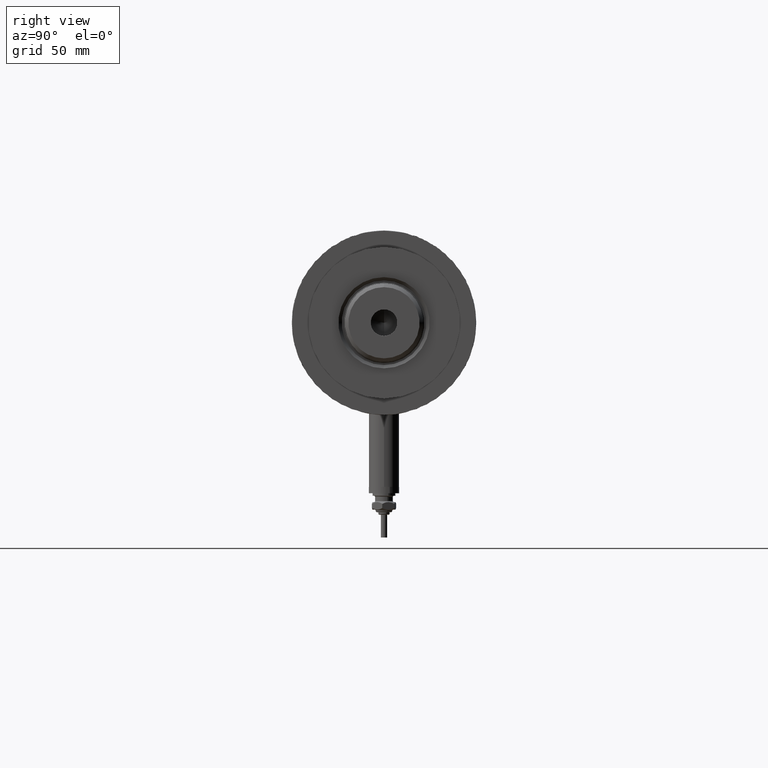
[diagram: clean part render]
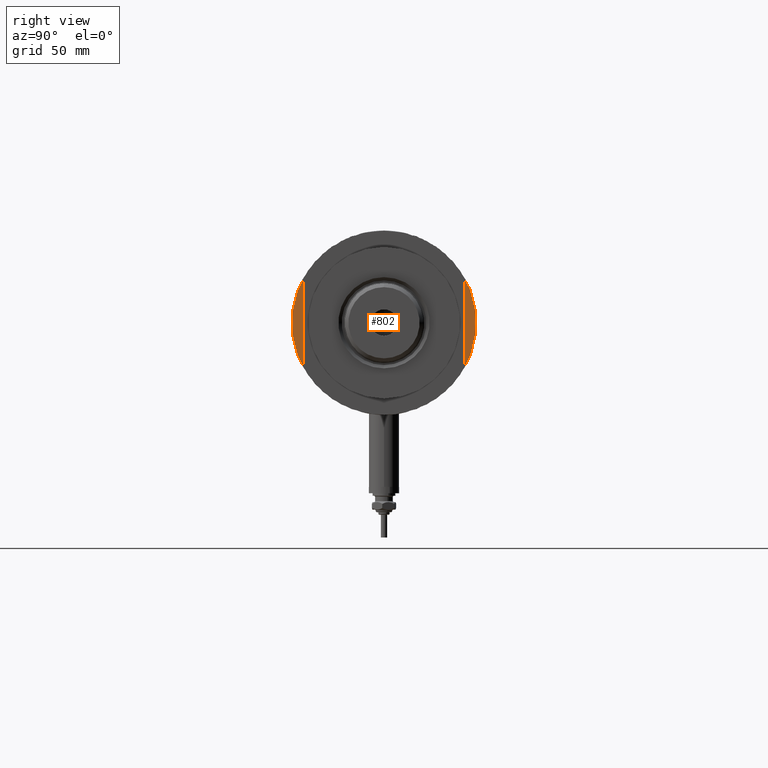
[diagram: same view with one face highlighted and labeled with its STEP entity id]
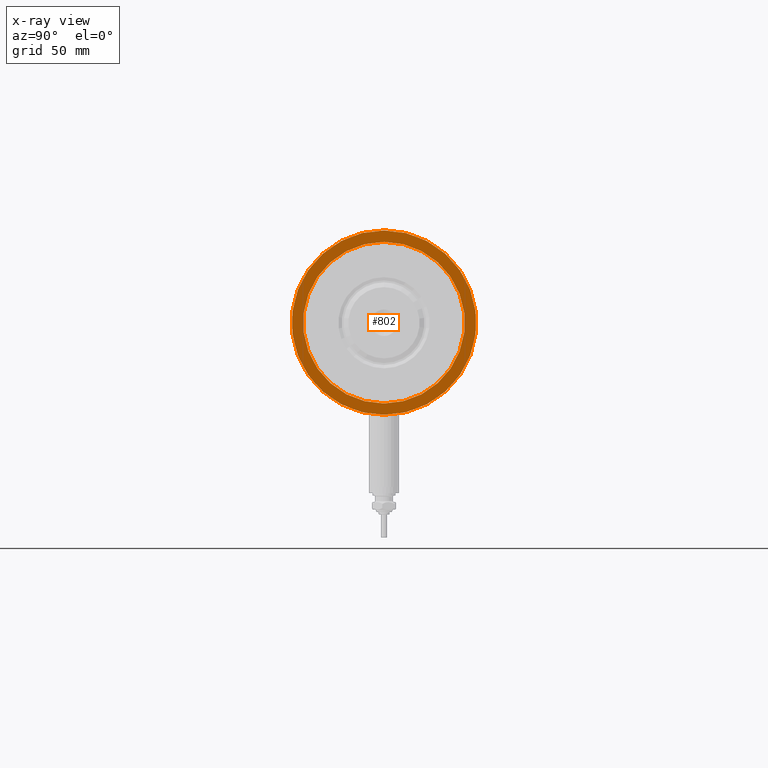
[diagram: x-ray of the same camera — body ghosted, the highlighted face saturated]
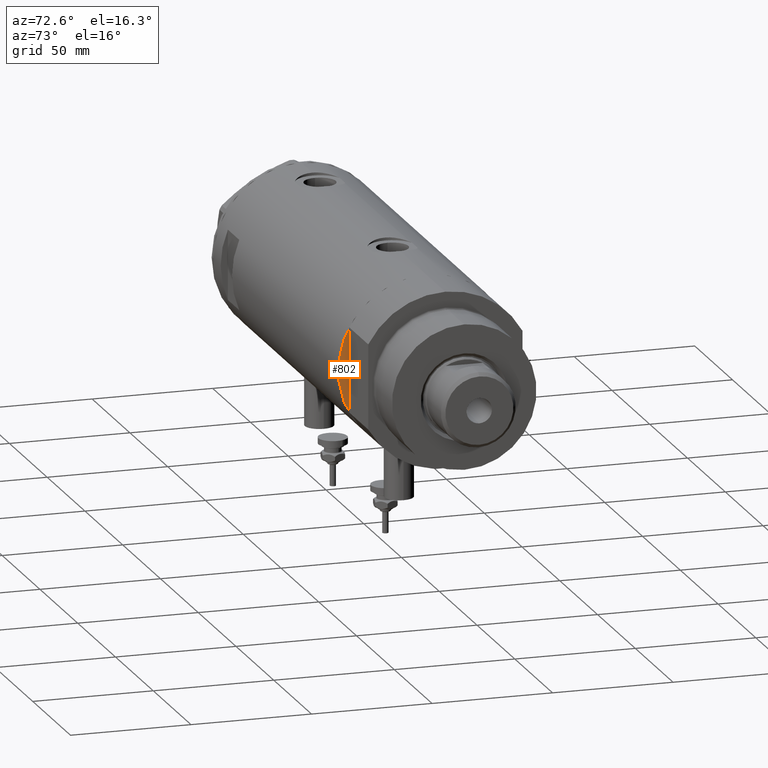
[diagram: same view with one face highlighted and labeled with its STEP entity id]
A machine part, right view. The second image highlights one B-rep face of the part: STEP entity #802.
The next image is the same camera in x-ray: the body ghosted, the highlighted face saturated — about 0% of this face is hidden behind the body in this view.
A second angle (auxiliary view) of the same face is appended — the face is thin or edge-on in the first view.
In plain terms, the highlighted planar face has unit normal (-1, -0, 0).
Its self-contained STEP definition (entity closure, byte-faithful):
#51 = DIRECTION ( 'NONE',  ( -1.000000000000000000, 0.000000000000000000, 0.000000000000000000 ) ) ;
#79 = ORIENTED_EDGE ( 'NONE', *, *, #2901, .F. ) ;
#159 = CIRCLE ( 'NONE', #1221, 32.00000000000000000 ) ;
#736 = CARTESIAN_POINT ( 'NONE',  ( 0.000000000000000000, 0.000000000000000000, -82.90000000000000568 ) ) ;
#762 = VERTEX_POINT ( 'NONE', #2600 ) ;
#802 = ADVANCED_FACE ( 'NONE', ( #3574, #4939 ), #4352, .F. ) ;
#811 = EDGE_CURVE ( 'NONE', #762, #2198, #5151, .T. ) ;
#937 = DIRECTION ( 'NONE',  ( 0.000000000000000000, 0.000000000000000000, -1.000000000000000000 ) ) ;
#1221 = AXIS2_PLACEMENT_3D ( 'NONE', #3493, #1568, #5228 ) ;
#1281 = ORIENTED_EDGE ( 'NONE', *, *, #811, .F. ) ;
#1568 = DIRECTION ( 'NONE',  ( 0.000000000000000000, 0.000000000000000000, -1.000000000000000000 ) ) ;
#1864 = CIRCLE ( 'NONE', #3405, 32.00000000000000000 ) ;
#2092 = AXIS2_PLACEMENT_3D ( 'NONE', #3020, #3967, #4853 ) ;
#2160 = ORIENTED_EDGE ( 'NONE', *, *, #5020, .F. ) ;
#2198 = VERTEX_POINT ( 'NONE', #5213 ) ;
#2570 = DIRECTION ( 'NONE',  ( 0.000000000000000000, 0.000000000000000000, 1.000000000000000000 ) ) ;
#2598 = CARTESIAN_POINT ( 'NONE',  ( -32.00000000000000000, 0.000000000000000000, -82.90000000000000568 ) ) ;
#2600 = CARTESIAN_POINT ( 'NONE',  ( 36.50000000000000000, 0.000000000000000000, -82.90000000000000568 ) ) ;
#2695 = VERTEX_POINT ( 'NONE', #2598 ) ;
#2738 = DIRECTION ( 'NONE',  ( 0.000000000000000000, 0.000000000000000000, 1.000000000000000000 ) ) ;
#2901 = EDGE_CURVE ( 'NONE', #2198, #762, #4468, .T. ) ;
#2935 = EDGE_CURVE ( 'NONE', #2695, #3605, #1864, .T. ) ;
#3020 = CARTESIAN_POINT ( 'NONE',  ( 0.000000000000000000, 0.000000000000000000, -82.90000000000000568 ) ) ;
#3023 = AXIS2_PLACEMENT_3D ( 'NONE', #4184, #2738, #3676 ) ;
#3028 = CARTESIAN_POINT ( 'NONE',  ( 32.00000000000000000, 3.918869757271530263E-15, -82.90000000000000568 ) ) ;
#3405 = AXIS2_PLACEMENT_3D ( 'NONE', #5486, #937, #51 ) ;
#3428 = EDGE_LOOP ( 'NONE', ( #5865, #2160 ) ) ;
#3493 = CARTESIAN_POINT ( 'NONE',  ( 0.000000000000000000, 0.000000000000000000, -82.90000000000000568 ) ) ;
#3511 = EDGE_LOOP ( 'NONE', ( #1281, #79 ) ) ;
#3574 = FACE_BOUND ( 'NONE', #3428, .T. ) ;
#3605 = VERTEX_POINT ( 'NONE', #3028 ) ;
#3676 = DIRECTION ( 'NONE',  ( 1.000000000000000000, 0.000000000000000000, 0.000000000000000000 ) ) ;
#3967 = DIRECTION ( 'NONE',  ( 0.000000000000000000, 0.000000000000000000, 1.000000000000000000 ) ) ;
#4184 = CARTESIAN_POINT ( 'NONE',  ( 0.000000000000000000, 0.000000000000000000, -82.90000000000000568 ) ) ;
#4352 = PLANE ( 'NONE',  #5058 ) ;
#4468 = CIRCLE ( 'NONE', #3023, 36.50000000000000000 ) ;
#4853 = DIRECTION ( 'NONE',  ( 1.000000000000000000, 0.000000000000000000, 0.000000000000000000 ) ) ;
#4912 = DIRECTION ( 'NONE',  ( 1.000000000000000000, 0.000000000000000000, -0.000000000000000000 ) ) ;
#4939 = FACE_OUTER_BOUND ( 'NONE', #3511, .T. ) ;
#5020 = EDGE_CURVE ( 'NONE', #3605, #2695, #159, .T. ) ;
#5058 = AXIS2_PLACEMENT_3D ( 'NONE', #736, #2570, #4912 ) ;
#5151 = CIRCLE ( 'NONE', #2092, 36.50000000000000000 ) ;
#5213 = CARTESIAN_POINT ( 'NONE',  ( -36.50000000000000000, 4.469960816887838430E-15, -82.90000000000000568 ) ) ;
#5228 = DIRECTION ( 'NONE',  ( -1.000000000000000000, 0.000000000000000000, 0.000000000000000000 ) ) ;
#5486 = CARTESIAN_POINT ( 'NONE',  ( 0.000000000000000000, 0.000000000000000000, -82.90000000000000568 ) ) ;
#5865 = ORIENTED_EDGE ( 'NONE', *, *, #2935, .F. ) ;